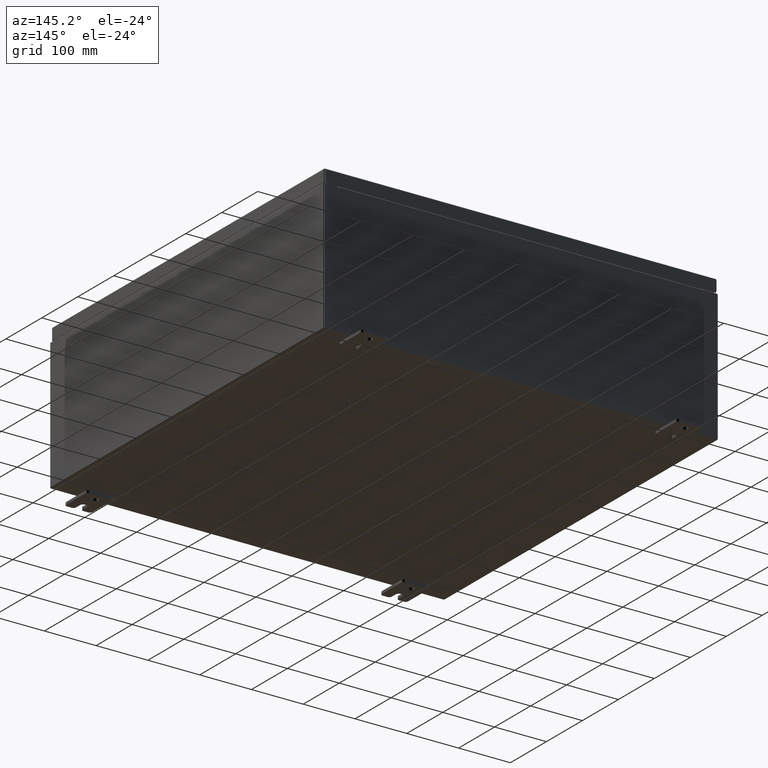
[diagram: clean part render]
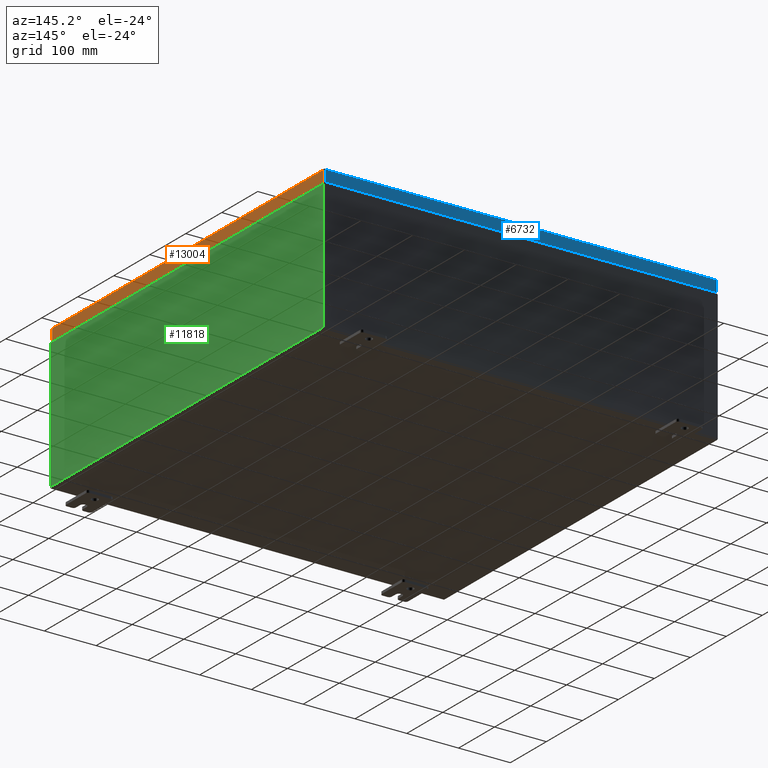
[diagram: same view with three faces highlighted in distinct colors, each labeled with its STEP entity id]
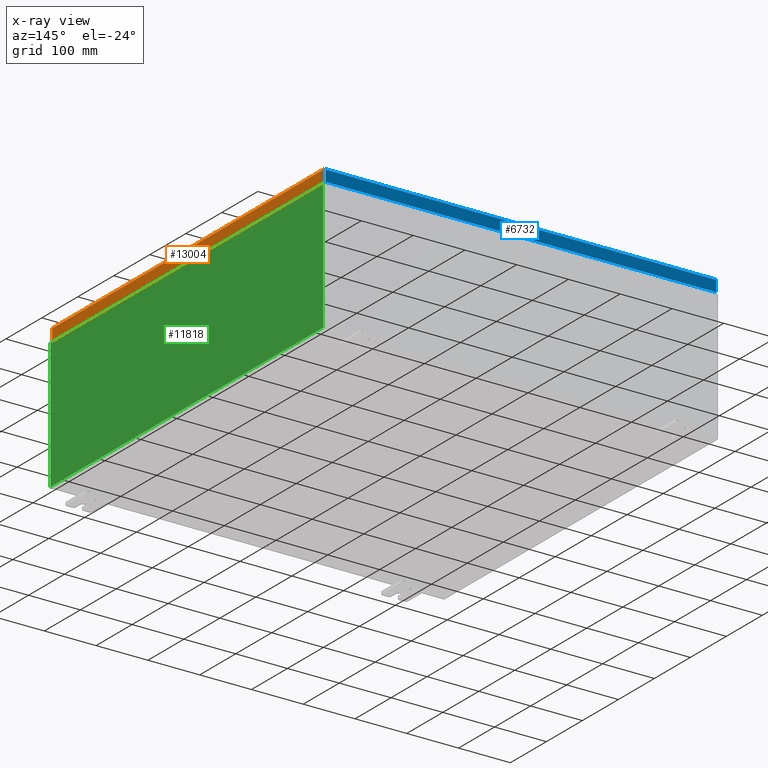
[diagram: x-ray of the same camera — body ghosted, the three highlighted faces saturated]
A machine part, auxiliary view with three faces highlighted in distinct colors.
The next image is the same camera in x-ray (body ghosted, the three faces saturated) — at least one of them is partly hidden behind the body in this view.
Their STEP definitions:

[orange] entity #13004 — the highlighted planar face has unit normal (1, 0, 0).
#728 = VERTEX_POINT ( 'NONE', #33685 ) ;
#5646 = VERTEX_POINT ( 'NONE', #18354 ) ;
#6312 = DIRECTION ( 'NONE',  ( -2.532419924601866100E-015, -6.982962677686265900E-015, 1.000000000000000000 ) ) ;
#7038 = VERTEX_POINT ( 'NONE', #23911 ) ;
#7070 = FACE_OUTER_BOUND ( 'NONE', #44945, .T. ) ;
#7810 = CARTESIAN_POINT ( 'NONE',  ( 14.93749999999999800, 0.0000000000000000000, -0.08770000000000008300 ) ) ;
#8557 = ORIENTED_EDGE ( 'NONE', *, *, #11996, .T. ) ;
#8823 = AXIS2_PLACEMENT_3D ( 'NONE', #55449, #60588, #30158 ) ;
#8881 = LINE ( 'NONE', #36431, #35781 ) ;
#10326 = LINE ( 'NONE', #17855, #59544 ) ;
#11938 = CARTESIAN_POINT ( 'NONE',  ( 14.93749999999999800, 14.84865786437626900, 1.417764599604241100E-013 ) ) ;
#11996 = EDGE_CURVE ( 'NONE', #728, #50897, #19047, .T. ) ;
#12772 = DIRECTION ( 'NONE',  ( 0.0000000000000000000, -1.000000000000000000, 0.0000000000000000000 ) ) ;
#13004 = ADVANCED_FACE ( 'NONE', ( #7070 ), #65221, .T. ) ;
#17855 = CARTESIAN_POINT ( 'NONE',  ( 14.93750000000000000, -14.93749999999999800, -0.9376999999999997600 ) ) ;
#18354 = CARTESIAN_POINT ( 'NONE',  ( 14.93749999999999800, -14.84865786437626800, -0.08770000000000008300 ) ) ;
#19047 = LINE ( 'NONE', #11938, #44423 ) ;
#23911 = CARTESIAN_POINT ( 'NONE',  ( 14.93750000000000000, -14.84865786437626100, -0.9376999999999997600 ) ) ;
#26185 = ORIENTED_EDGE ( 'NONE', *, *, #29313, .T. ) ;
#29313 = EDGE_CURVE ( 'NONE', #50897, #5646, #32146, .T. ) ;
#30158 = DIRECTION ( 'NONE',  ( 2.532419924601866100E-015, 0.0000000000000000000, -1.000000000000000000 ) ) ;
#32146 = LINE ( 'NONE', #7810, #55978 ) ;
#33685 = CARTESIAN_POINT ( 'NONE',  ( 14.93750000000000000, 14.84865786437627300, -0.9376999999999997600 ) ) ;
#35781 = VECTOR ( 'NONE', #6312, 39.37007874015748100 ) ;
#36431 = CARTESIAN_POINT ( 'NONE',  ( 14.93749999999999800, -14.84865786437626800, -0.07469999999999980800 ) ) ;
#37783 = EDGE_CURVE ( 'NONE', #728, #7038, #10326, .T. ) ;
#38077 = ORIENTED_EDGE ( 'NONE', *, *, #37783, .F. ) ;
#44423 = VECTOR ( 'NONE', #47849, 39.37007874015748100 ) ;
#44945 = EDGE_LOOP ( 'NONE', ( #44958, #38077, #8557, #26185 ) ) ;
#44958 = ORIENTED_EDGE ( 'NONE', *, *, #62534, .F. ) ;
#47849 = DIRECTION ( 'NONE',  ( -2.532419924601866100E-015, -6.982962677686265900E-015, 1.000000000000000000 ) ) ;
#50897 = VERTEX_POINT ( 'NONE', #64544 ) ;
#55449 = CARTESIAN_POINT ( 'NONE',  ( 14.93749999999999800, 0.0000000000000000000, 3.808883627975194400E-014 ) ) ;
#55978 = VECTOR ( 'NONE', #63690, 39.37007874015748100 ) ;
#59544 = VECTOR ( 'NONE', #12772, 39.37007874015748100 ) ;
#60588 = DIRECTION ( 'NONE',  ( 1.000000000000000000, 0.0000000000000000000, 2.532419924601866100E-015 ) ) ;
#62534 = EDGE_CURVE ( 'NONE', #7038, #5646, #8881, .T. ) ;
#63690 = DIRECTION ( 'NONE',  ( 0.0000000000000000000, -1.000000000000000000, 0.0000000000000000000 ) ) ;
#64544 = CARTESIAN_POINT ( 'NONE',  ( 14.93749999999999800, 14.84865786437626800, -0.08770000000000008300 ) ) ;
#65221 = PLANE ( 'NONE',  #8823 ) ;

[blue] entity #6732 — the highlighted planar face has unit normal (0, -1, -0).
#235 = DIRECTION ( 'NONE',  ( 0.0000000000000000000, 2.532419924601855400E-015, -1.000000000000000000 ) ) ;
#878 = PLANE ( 'NONE',  #5185 ) ;
#946 = ORIENTED_EDGE ( 'NONE', *, *, #56453, .T. ) ;
#1292 = DIRECTION ( 'NONE',  ( 0.0000000000000000000, 2.532419924601855400E-015, -1.000000000000000000 ) ) ;
#5185 = AXIS2_PLACEMENT_3D ( 'NONE', #5734, #36064, #235 ) ;
#5734 = CARTESIAN_POINT ( 'NONE',  ( -4.669775745843815100E-030, 14.93750000000000000, 3.808883627975179900E-014 ) ) ;
#6732 = ADVANCED_FACE ( 'NONE', ( #28130 ), #878, .F. ) ;
#10989 = EDGE_CURVE ( 'NONE', #22903, #37145, #22295, .T. ) ;
#13716 = CARTESIAN_POINT ( 'NONE',  ( 14.84865786437626400, 14.93750000000000000, -0.08770000000000226200 ) ) ;
#17850 = DIRECTION ( 'NONE',  ( -0.0000000000000000000, 2.532419924601855400E-015, -1.000000000000000000 ) ) ;
#18409 = VERTEX_POINT ( 'NONE', #13716 ) ;
#20204 = VERTEX_POINT ( 'NONE', #46811 ) ;
#22169 = CARTESIAN_POINT ( 'NONE',  ( -14.93749999999999800, 14.93750000000000200, -0.9377000000000035300 ) ) ;
#22295 = LINE ( 'NONE', #22971, #47670 ) ;
#22903 = VERTEX_POINT ( 'NONE', #60540 ) ;
#22971 = CARTESIAN_POINT ( 'NONE',  ( -14.84865786437626800, 14.93750000000000000, -0.07469999999999980800 ) ) ;
#23121 = ORIENTED_EDGE ( 'NONE', *, *, #10989, .F. ) ;
#25536 = LINE ( 'NONE', #22169, #40592 ) ;
#26343 = CARTESIAN_POINT ( 'NONE',  ( 14.84865786437626800, 14.93750000000000000, 3.808883627975179900E-014 ) ) ;
#28130 = FACE_OUTER_BOUND ( 'NONE', #41662, .T. ) ;
#28594 = LINE ( 'NONE', #31808, #55559 ) ;
#31808 = CARTESIAN_POINT ( 'NONE',  ( -14.93749999999999800, 14.93750000000000000, -0.08770000000000008300 ) ) ;
#36064 = DIRECTION ( 'NONE',  ( 3.126209704330587400E-031, -1.000000000000000000, -2.532419924601855400E-015 ) ) ;
#37145 = VERTEX_POINT ( 'NONE', #65134 ) ;
#37431 = DIRECTION ( 'NONE',  ( 1.000000000000000000, -4.379057701015054300E-047, 1.234475243998914400E-016 ) ) ;
#37553 = EDGE_CURVE ( 'NONE', #18409, #22903, #28594, .T. ) ;
#38364 = LINE ( 'NONE', #26343, #50283 ) ;
#40592 = VECTOR ( 'NONE', #37431, 39.37007874015748100 ) ;
#41662 = EDGE_LOOP ( 'NONE', ( #50131, #946, #51607, #23121 ) ) ;
#42009 = DIRECTION ( 'NONE',  ( -1.000000000000000000, -4.978778418007973200E-031, 7.315408853326900200E-017 ) ) ;
#46811 = CARTESIAN_POINT ( 'NONE',  ( 14.84865786437626400, 14.93750000000000200, -0.9376999999999997600 ) ) ;
#47670 = VECTOR ( 'NONE', #17850, 39.37007874015748100 ) ;
#50131 = ORIENTED_EDGE ( 'NONE', *, *, #37553, .F. ) ;
#50283 = VECTOR ( 'NONE', #1292, 39.37007874015748100 ) ;
#51607 = ORIENTED_EDGE ( 'NONE', *, *, #60387, .F. ) ;
#55559 = VECTOR ( 'NONE', #42009, 39.37007874015748100 ) ;
#56453 = EDGE_CURVE ( 'NONE', #18409, #20204, #38364, .T. ) ;
#60387 = EDGE_CURVE ( 'NONE', #37145, #20204, #25536, .T. ) ;
#60540 = CARTESIAN_POINT ( 'NONE',  ( -14.84865786437626400, 14.93750000000000000, -0.08770000000000118000 ) ) ;
#65134 = CARTESIAN_POINT ( 'NONE',  ( -14.84865786437626800, 14.93750000000000200, -0.9377000000000035300 ) ) ;

[green] entity #11818 — the highlighted planar face has unit normal (-1, 0, 0).
#5243 = EDGE_CURVE ( 'NONE', #18123, #20349, #17093, .T. ) ;
#6702 = EDGE_CURVE ( 'NONE', #49190, #25315, #41573, .T. ) ;
#7650 = LINE ( 'NONE', #63959, #19544 ) ;
#9251 = DIRECTION ( 'NONE',  ( -3.523082860860888200E-015, -2.201926788038054900E-016, -1.000000000000000000 ) ) ;
#9768 = CARTESIAN_POINT ( 'NONE',  ( 15.00000000000000000, 14.92530000000000000, -4.982061477997445600E-014 ) ) ;
#11818 = ADVANCED_FACE ( 'NONE', ( #49207 ), #56938, .F. ) ;
#14264 = ORIENTED_EDGE ( 'NONE', *, *, #53337, .F. ) ;
#14616 = VECTOR ( 'NONE', #18578, 39.37007874015748100 ) ;
#16341 = CARTESIAN_POINT ( 'NONE',  ( 15.00000000000000000, 0.0000000000000000000, -5.310705656892489500E-014 ) ) ;
#16588 = ORIENTED_EDGE ( 'NONE', *, *, #56834, .T. ) ;
#17093 = LINE ( 'NONE', #63788, #55987 ) ;
#17208 = EDGE_LOOP ( 'NONE', ( #16588, #17444, #14264, #30659 ) ) ;
#17444 = ORIENTED_EDGE ( 'NONE', *, *, #5243, .T. ) ;
#18123 = VERTEX_POINT ( 'NONE', #32083 ) ;
#18578 = DIRECTION ( 'NONE',  ( 3.523082860860888200E-015, -2.201926788038055100E-016, 1.000000000000000000 ) ) ;
#19544 = VECTOR ( 'NONE', #48678, 39.37007874015748100 ) ;
#20349 = VERTEX_POINT ( 'NONE', #62922 ) ;
#24754 = DIRECTION ( 'NONE',  ( -0.0000000000000000000, -1.000000000000000000, -0.0000000000000000000 ) ) ;
#25315 = VERTEX_POINT ( 'NONE', #25443 ) ;
#25443 = CARTESIAN_POINT ( 'NONE',  ( 15.00000000000003600, 14.92529999999999800, 9.837599999999994800 ) ) ;
#30659 = ORIENTED_EDGE ( 'NONE', *, *, #6702, .T. ) ;
#31630 = DIRECTION ( 'NONE',  ( 3.523082860860887800E-015, 0.0000000000000000000, 1.000000000000000000 ) ) ;
#32083 = CARTESIAN_POINT ( 'NONE',  ( 15.00000000000003600, -14.92529999999999800, 9.837600000000001900 ) ) ;
#41573 = LINE ( 'NONE', #9768, #14616 ) ;
#45097 = CARTESIAN_POINT ( 'NONE',  ( 15.00000000000000000, 14.92529999999999800, 0.01299999999999984700 ) ) ;
#48678 = DIRECTION ( 'NONE',  ( -0.0000000000000000000, -1.000000000000000000, -0.0000000000000000000 ) ) ;
#49190 = VERTEX_POINT ( 'NONE', #45097 ) ;
#49207 = FACE_OUTER_BOUND ( 'NONE', #17208, .T. ) ;
#49985 = AXIS2_PLACEMENT_3D ( 'NONE', #16341, #62056, #31630 ) ;
#50032 = CARTESIAN_POINT ( 'NONE',  ( 15.00000000000003600, 14.92529999999999800, 9.837599999999994800 ) ) ;
#52659 = LINE ( 'NONE', #50032, #64547 ) ;
#53337 = EDGE_CURVE ( 'NONE', #49190, #20349, #7650, .T. ) ;
#55987 = VECTOR ( 'NONE', #9251, 39.37007874015748100 ) ;
#56834 = EDGE_CURVE ( 'NONE', #25315, #18123, #52659, .T. ) ;
#56938 = PLANE ( 'NONE',  #49985 ) ;
#62056 = DIRECTION ( 'NONE',  ( -1.000000000000000000, 0.0000000000000000000, 3.523082860860887800E-015 ) ) ;
#62922 = CARTESIAN_POINT ( 'NONE',  ( 15.00000000000000000, -14.92530000000000000, 0.01299999999999984300 ) ) ;
#63788 = CARTESIAN_POINT ( 'NONE',  ( 15.00000000000000000, -14.92530000000000000, -4.982061477997445600E-014 ) ) ;
#63959 = CARTESIAN_POINT ( 'NONE',  ( 15.00000000000000000, -14.92529999999999800, 0.01299999999999984700 ) ) ;
#64547 = VECTOR ( 'NONE', #24754, 39.37007874015748100 ) ;